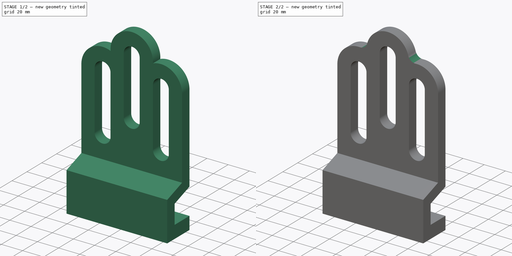
[diagram: build sequence overview — one tinted view per stage of 2, left to right]
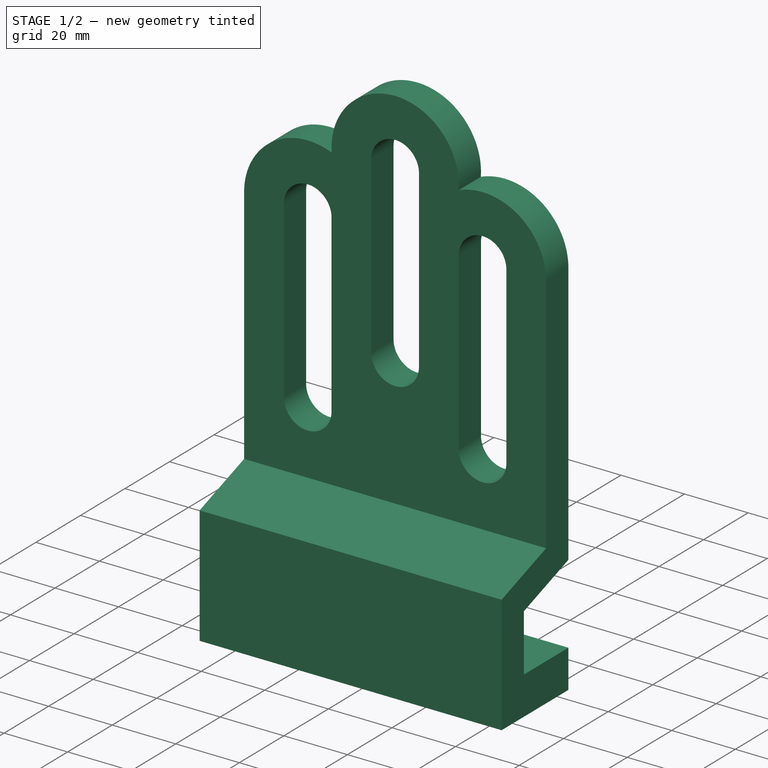
[diagram: stage 1 of 2 — iso view after this stage's code; geometry added in this stage tinted green]
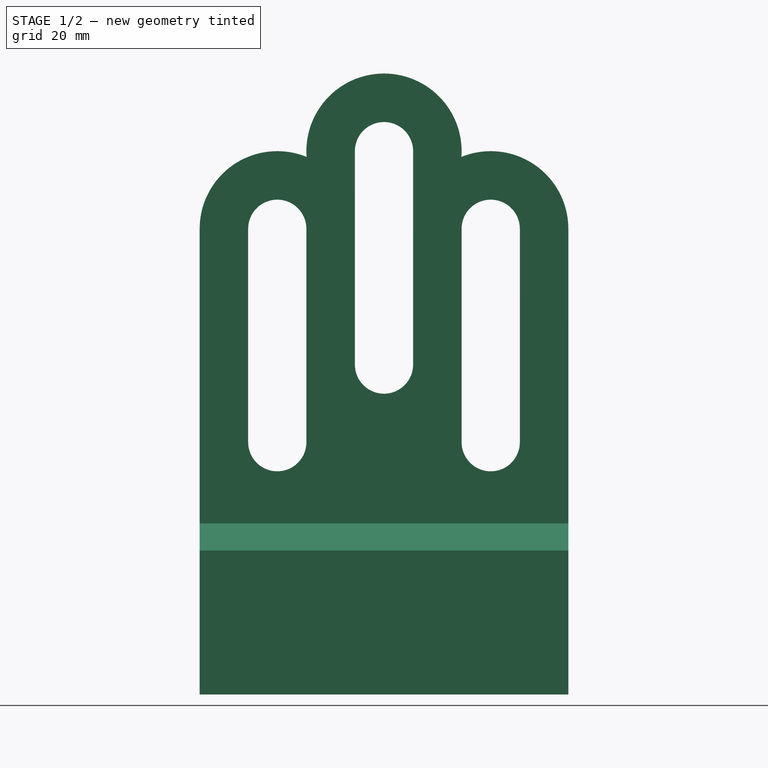
[diagram: stage 1 of 2 — front view after this stage's code; geometry added in this stage tinted green]
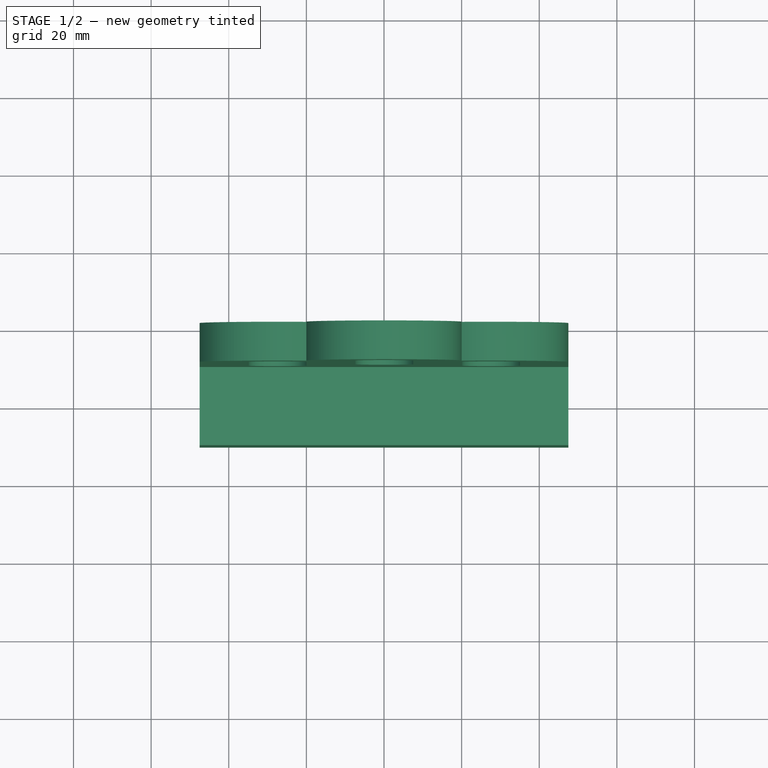
[diagram: stage 1 of 2 — top view after this stage's code; geometry added in this stage tinted green]
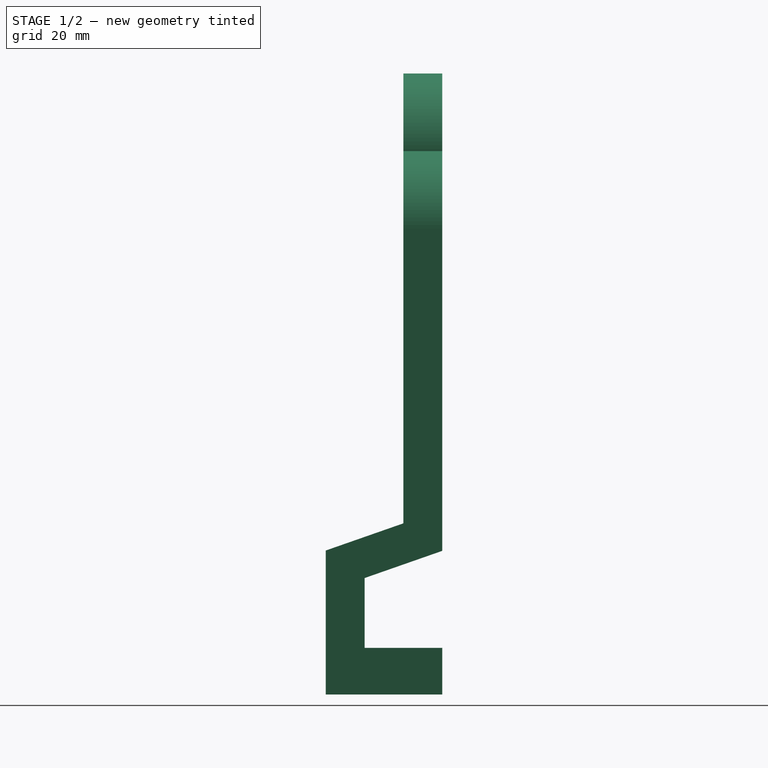
[diagram: stage 1 of 2 — right view after this stage's code; geometry added in this stage tinted green]
FCSTD DOCUMENT  (FreeCAD 0.16R)
Label: Ejer final
License: All rights reserved
LicenseURL: http://en.wikipedia.org/wiki/All_rights_reserved
objects: Sketcher::SketchObject×2, PartDesign::Pad×2, PartDesign::Fillet×2
note: 8 computed .brp shape members not serialized (recipe doc carries the construction recipe); baked Part::Feature solids carry a one-line shape summary decoded from their .brp

FEATURE [Sketcher::SketchObject] Sketch
  Placement = pos=(0,0,0) rot=(-1,0,0;4.71239rad)
  sketch-geometry (21):
    g0: LineSegment StartX=-47.5 StartY=0 StartZ=0 EndX=47.5 EndY=0 EndZ=0
    g1: LineSegment StartX=47.5 StartY=0 StartZ=0 EndX=47.5 EndY=83 EndZ=0
    g2: LineSegment StartX=-47.5 StartY=83 StartZ=0 EndX=-47.5 EndY=0 EndZ=0
    g3: LineSegment [constr] StartX=0 StartY=0 StartZ=0 EndX=0 EndY=123 EndZ=0
    g4: ArcOfCircle CenterX=0 CenterY=103 CenterZ=0 NormalX=0 NormalY=0 NormalZ=1 Radius=20 StartAngle=6.20903 EndAngle=9.49894
    g5: LineSegment [constr] StartX=-27.5 StartY=0 StartZ=0 EndX=-27.5 EndY=83 EndZ=0
    g6: LineSegment [constr] StartX=27.5 StartY=0 StartZ=0 EndX=27.5 EndY=83 EndZ=0
    g7: ArcOfCircle CenterX=-27.5 CenterY=83 CenterZ=0 NormalX=0 NormalY=0 NormalZ=1 Radius=20 StartAngle=1.18343 EndAngle=3.14159
    g8: ArcOfCircle CenterX=27.5 CenterY=83 CenterZ=0 NormalX=0 NormalY=0 NormalZ=1 Radius=20 StartAngle=2.578e-09 EndAngle=1.95816
    g9: ArcOfCircle CenterX=-27.5 CenterY=83 CenterZ=0 NormalX=0 NormalY=0 NormalZ=1 Radius=7.5 StartAngle=4.1e-11 EndAngle=3.14159
    g10: ArcOfCircle CenterX=0 CenterY=103 CenterZ=0 NormalX=0 NormalY=0 NormalZ=1 Radius=7.5 StartAngle=-1.01e-10 EndAngle=3.14159
    g11: ArcOfCircle CenterX=27.5 CenterY=83 CenterZ=0 NormalX=0 NormalY=0 NormalZ=1 Radius=7.5 StartAngle=-2.2e-11 EndAngle=3.1416
    g12: ArcOfCircle CenterX=-27.5 CenterY=28 CenterZ=0 NormalX=0 NormalY=0 NormalZ=1 Radius=7.5 StartAngle=3.14159 EndAngle=6.28319
    g13: ArcOfCircle CenterX=0 CenterY=48 CenterZ=0 NormalX=0 NormalY=0 NormalZ=1 Radius=7.5 StartAngle=3.14159 EndAngle=6.28319
    g14: ArcOfCircle CenterX=27.5 CenterY=28 CenterZ=0 NormalX=0 NormalY=0 NormalZ=1 Radius=7.5 StartAngle=3.14159 EndAngle=6.28319
    g15: LineSegment StartX=-35 StartY=28 StartZ=0 EndX=-35 EndY=83 EndZ=0
    g16: LineSegment StartX=-20 StartY=83 StartZ=0 EndX=-20 EndY=28 EndZ=0
    g17: LineSegment StartX=-7.5 StartY=48 StartZ=0 EndX=-7.5 EndY=103 EndZ=0
    g18: LineSegment StartX=7.5 StartY=103 StartZ=0 EndX=7.5 EndY=48 EndZ=0
    g19: LineSegment StartX=20 StartY=83 StartZ=0 EndX=20 EndY=28 EndZ=0
    g20: LineSegment StartX=35 StartY=83 StartZ=0 EndX=35 EndY=28 EndZ=0
  constraints (71):
    c: Coincident(g0,g1)
    c: Coincident(g2,g0)
    c: Vertical(g1)
    c: Vertical(g2)
    c: PointOnObject(g0,g-1)
    c: Symmetric(g0,g0,g-2)
    c: DistanceX(g0,g0) = 95
    c: Coincident(g3,g-1)
    c: Vertical(g3)
    c: PointOnObject(g4,g3)
    c: Radius(g4) = 20
    c: PointOnObject(g5,g0)
    c: Vertical(g5)
    c: PointOnObject(g6,g0)
    c: Vertical(g6)
    c: DistanceX(g5,g6) = 55
    c: Symmetric(g6,g5,g3)
    c: Coincident(g7,g5)
    c: Coincident(g7,g2)
    c: Coincident(g8,g1)
    c: Coincident(g4,g7)
    c: Coincident(g4,g8)
    c: Coincident(g9,g5)
    c: Coincident(g10,g4)
    c: Coincident(g11,g8)
    c: Radius(g9) = 7.5
    c: Equal(g9,g10)
    c: Equal(g9,g11)
    c: PointOnObject(g12,g5)
    c: PointOnObject(g13,g3)
    c: PointOnObject(g14,g6)
    c: Radius(g14) = 7.5
    c: Equal(g14,g13)
    c: Equal(g14,g12)
    c: DistanceY(g13,g4) = 55
    c: DistanceY(g3,g3) = 123
    c: PointOnObject(g3,g4)
    c: DistanceY(g14,g8) = 55
    c: Coincident(g8,g6)
    c: DistanceY(g12,g5) = 55
    c: DistanceY(g6,g3) = 40
    c: DistanceY(g5,g3) = 40
    c: Vertical(g15)
    c: Vertical(g16)
    c: Vertical(g17)
    c: Vertical(g20)
    c: Coincident(g10,g18)
    c: Coincident(g10,g17)
    c: Coincident(g13,g17)
    c: Coincident(g13,g18)
    c: Coincident(g11,g20)
    c: Coincident(g14,g19)
    c: Coincident(g14,g20)
    c: Coincident(g12,g15)
    c: Coincident(g12,g16)
    c: PointOnObject(g9,g15)
    c: Coincident(g9,g16)
    c: Tangent(g15,g12)
    c: Tangent(g12,g16)
    c: Tangent(g16,g9)
    c: Tangent(g15,g9)
    c: Tangent(g17,g10)
    c: Tangent(g17,g13)
    c: Tangent(g13,g18)
    c: Tangent(g10,g18)
    c: Tangent(g19,g11)
    c: Tangent(g20,g11)
    c: Tangent(g20,g14)
    c: Tangent(g14,g19)
    c: Coincident(g15,g9)
    c: Coincident(g11,g19)
FEATURE [PartDesign::Pad] Pad
  Length = 10
  Length2 = 100
  Placement = pos=(0,0,0) rot=(-1,0,0;4.71239rad)
  Sketch = -> Sketch
  Type = 0
FEATURE [Sketcher::SketchObject] Sketch001
  ExternalGeometry = -> [Pad]
  Placement = pos=(-47.5,0,0) rot=(0.707107,0,-0.707107;3.14159rad)
  Support = -> Pad [Face6]
  sketch-geometry (10):
    g0: LineSegment StartX=0 StartY=0 StartZ=0 EndX=7 EndY=20 EndZ=0
    g1: LineSegment StartX=7 StartY=20 StartZ=0 EndX=25 EndY=20 EndZ=0
    g2: LineSegment StartX=25 StartY=20 StartZ=0 EndX=25 EndY=0 EndZ=0
    g3: LineSegment StartX=25 StartY=0 StartZ=0 EndX=37 EndY=0 EndZ=0
    g4: LineSegment StartX=37 StartY=0 StartZ=0 EndX=37 EndY=30 EndZ=0
    g5: LineSegment StartX=37 StartY=30 StartZ=0 EndX=-0.0948101 EndY=30 EndZ=0
    g6: LineSegment StartX=-0.0948101 StartY=30 StartZ=0 EndX=-7.09481 EndY=10 EndZ=0
    g7: LineSegment StartX=0 StartY=8.92301 StartZ=0 EndX=0 EndY=0 EndZ=0
    g8: LineSegment [constr] StartX=-3.9836 StartY=18.8892 StartZ=0 EndX=5.45498 EndY=15.5857 EndZ=0
    g9: LineSegment StartX=-7.09481 StartY=10 StartZ=0 EndX=0 EndY=0 EndZ=0
  constraints (27):
    c: Coincident(g0,g1)
    c: Horizontal(g1)
    c: Coincident(g1,g2)
    c: PointOnObject(g2,g-1)
    c: Vertical(g2)
    c: Coincident(g2,g3)
    c: Horizontal(g3)
    c: Coincident(g3,g4)
    c: Vertical(g4)
    c: Coincident(g4,g5)
    c: Horizontal(g5)
    c: Coincident(g5,g6)
    c: Coincident(g7,g0)
    c: Coincident(g0,g-1)
    c: DistanceX(g3,g3) = 12
    c: DistanceY(g1,g4) = 10
    c: DistanceY(g4,g4) = 30
    c: DistanceX(g0,g2) = 18
    c: DistanceX(g-1,g0) = 7
    c: Parallel(g6,g0)
    c: PointOnObject(g8,g6)
    c: PointOnObject(g8,g0)
    c: Perpendicular(g0,g8)
    c: Distance(g8) = 10
    c: Coincident(g9,g6)
    c: Coincident(g9,g-1)
    c: PointOnObject(g6,g-3)
FEATURE [PartDesign::Pad] Pad001
  Length = 95
  Length2 = 100
  Placement = pos=(0,0,0) rot=(-1,0,0;4.71239rad)
  Reversed = true
  Sketch = -> Sketch001
  Type = 0
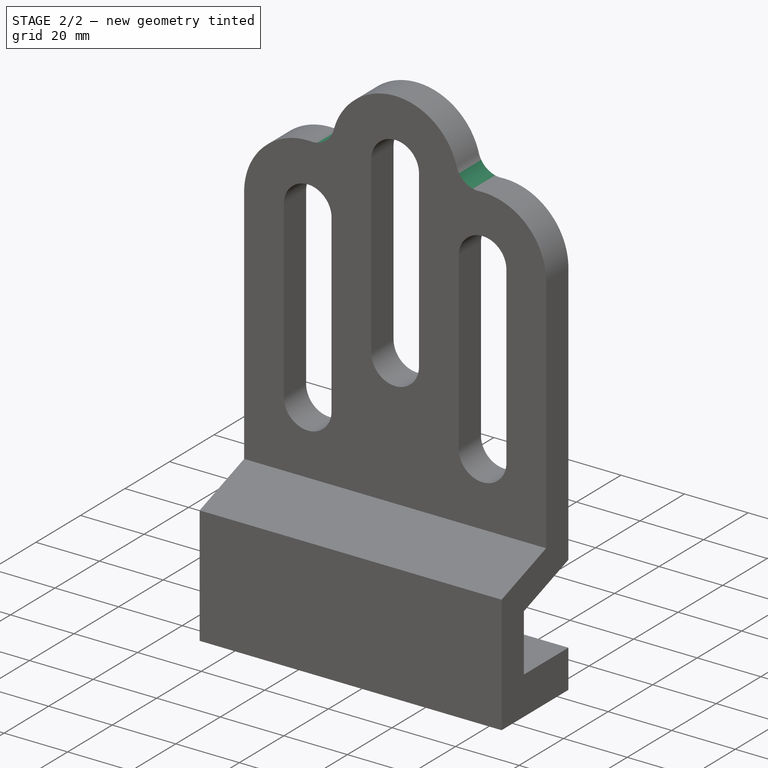
[diagram: stage 2 of 2 — iso view after this stage's code; geometry added in this stage tinted green]
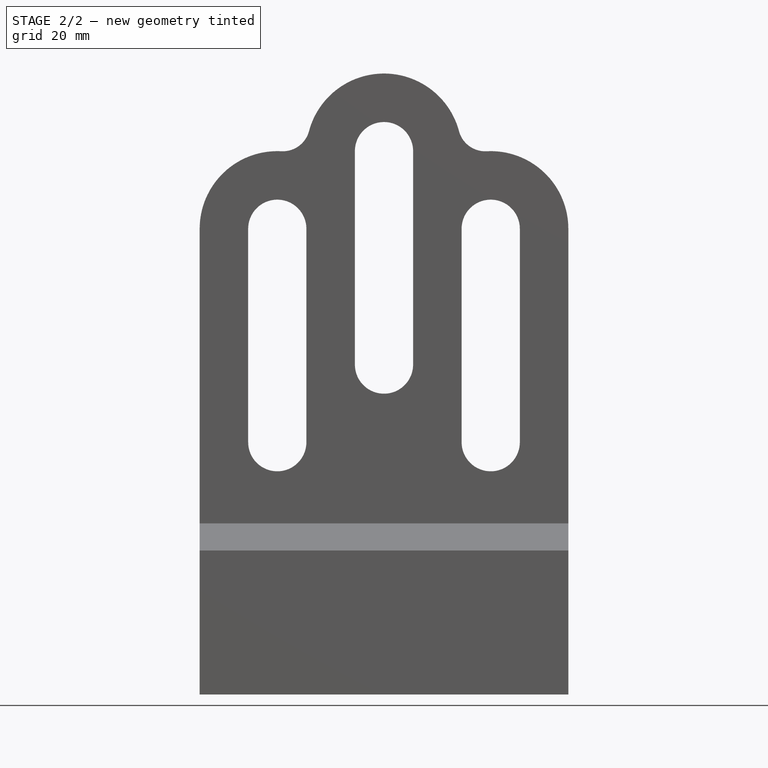
[diagram: stage 2 of 2 — front view after this stage's code; geometry added in this stage tinted green]
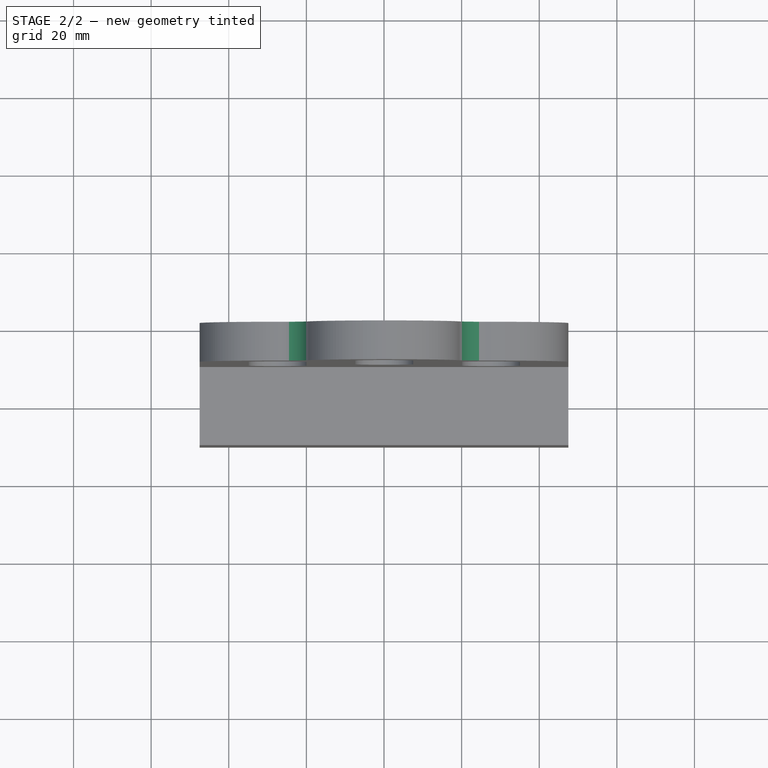
[diagram: stage 2 of 2 — top view after this stage's code; geometry added in this stage tinted green]
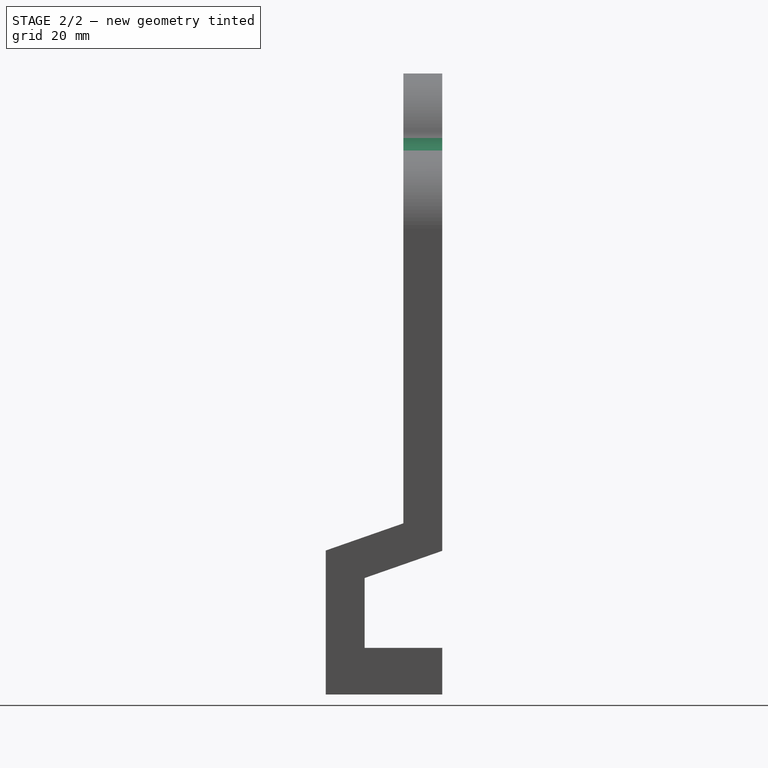
[diagram: stage 2 of 2 — right view after this stage's code; geometry added in this stage tinted green]
FEATURE [PartDesign::Fillet] Fillet
  Base = -> Pad001 [Edge5]
  Placement = pos=(0,0,0) rot=(-1,0,0;4.71239rad)
  Radius = 7
FEATURE [PartDesign::Fillet] Fillet001
  Base = -> Fillet [Edge3]
  Placement = pos=(0,0,0) rot=(-1,0,0;4.71239rad)
  Radius = 7
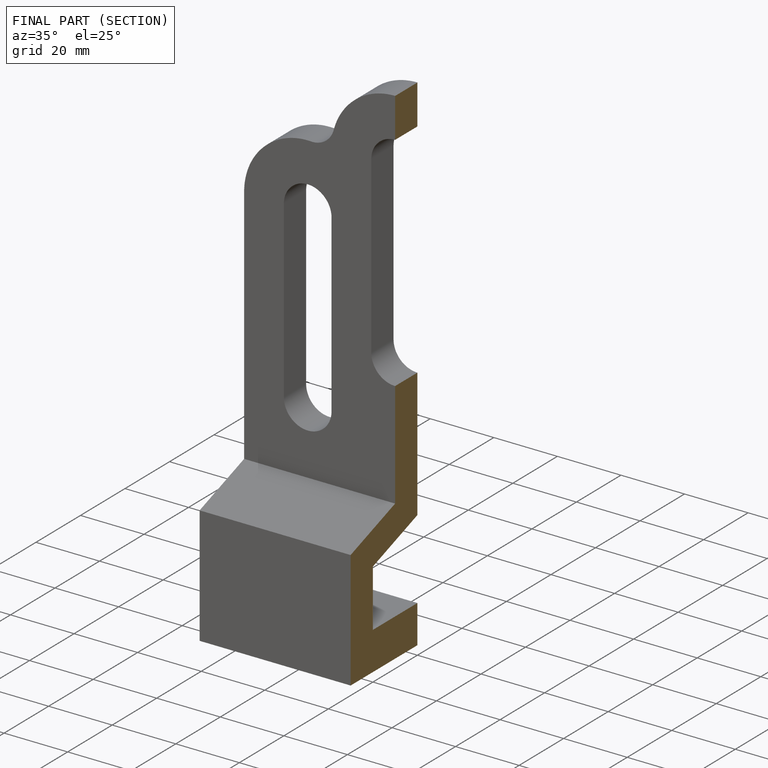
[diagram: finished part — half-section view (interior)]
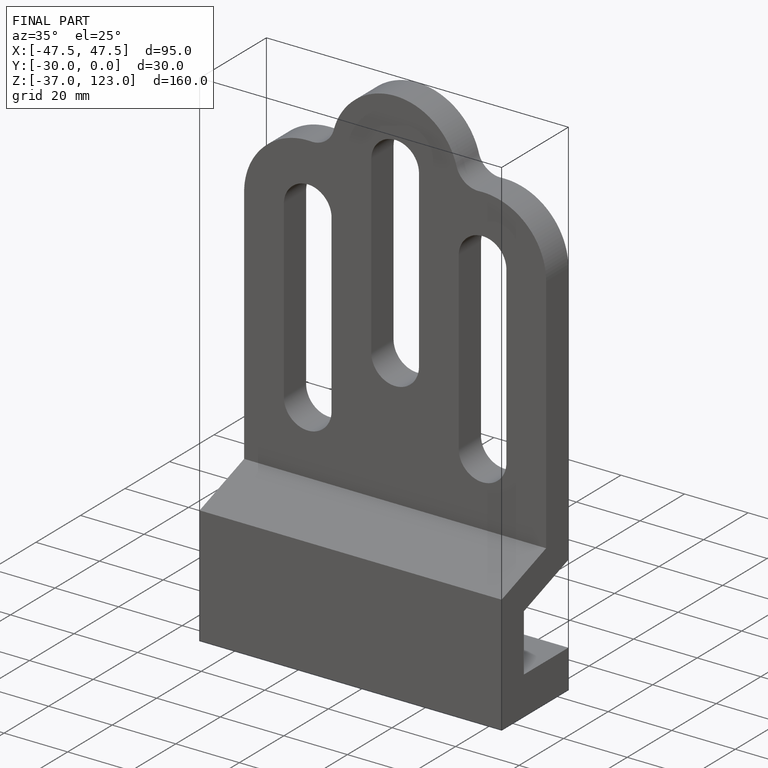
[diagram: finished part — iso view with bounding-box wireframe]
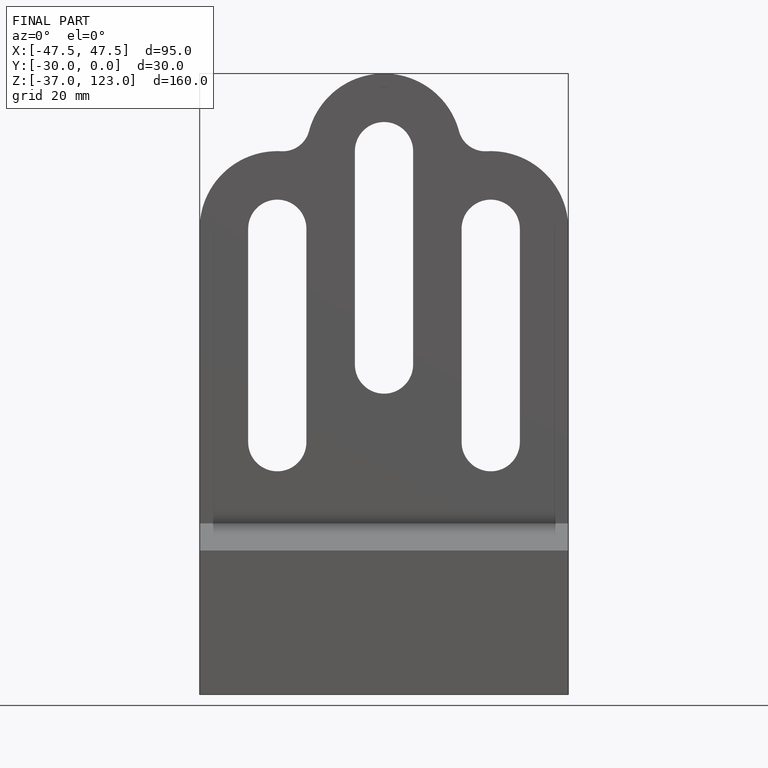
[diagram: finished part — front view with bounding-box wireframe]
